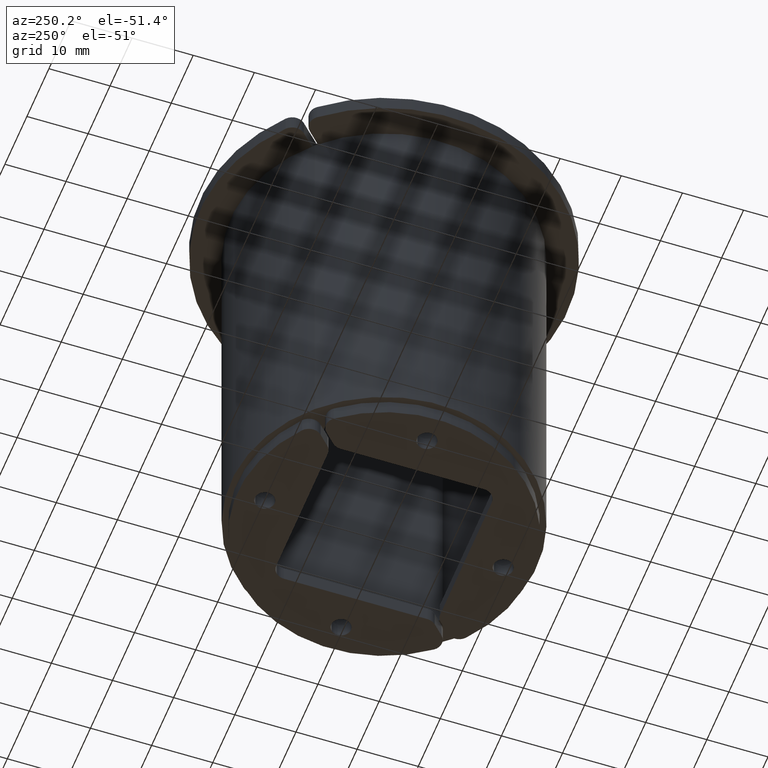
[diagram: clean part render]
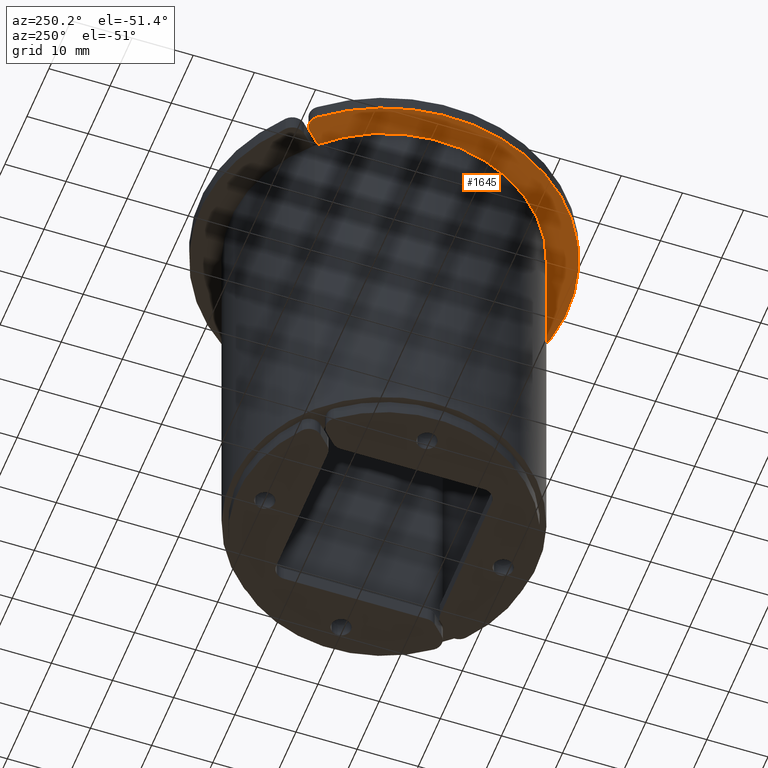
[diagram: same view with one face highlighted and labeled with its STEP entity id]
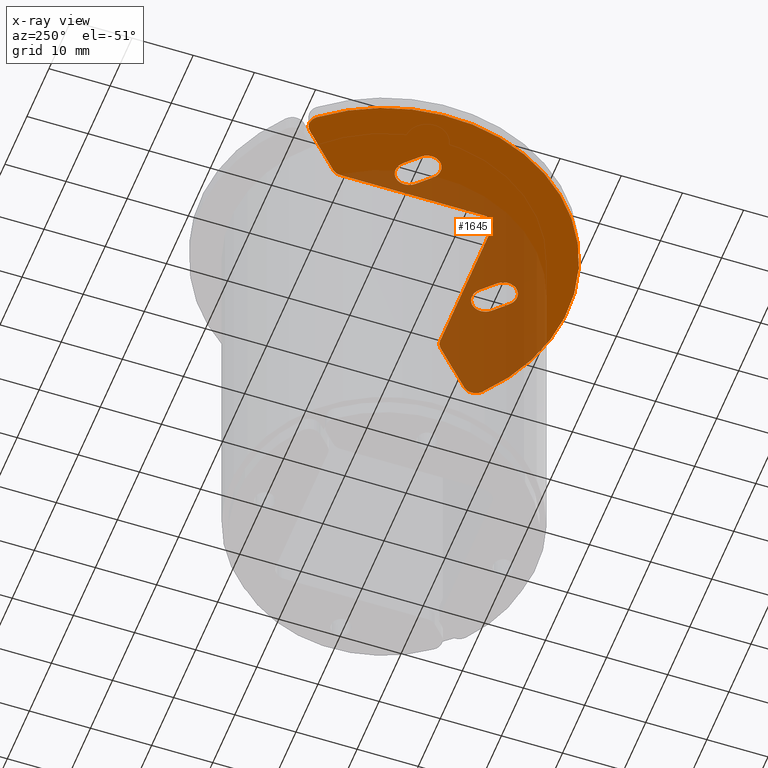
[diagram: x-ray of the same camera — body ghosted, the highlighted face saturated]
A machine part, auxiliary view. The second image highlights one B-rep face of the part: STEP entity #1645.
The next image is the same camera in x-ray: the body ghosted, the highlighted face saturated — about 43% of this face is hidden behind the body in this view.
In plain terms, the highlighted planar face has unit normal (0, 0, 1).
Its self-contained STEP definition (entity closure, byte-faithful):
#1053=CARTESIAN_POINT('',(21.090990257669752,-1.590990257669733,-2.5));
#1054=VERTEX_POINT('',#1053);
#1061=CARTESIAN_POINT('',(18.969669914110124,-3.712310601229367,-2.5));
#1062=VERTEX_POINT('',#1061);
#1063=CARTESIAN_POINT('',(18.969669914110124,-3.712310601229367,-2.5));
#1064=DIRECTION('',(0.707106781186547,0.707106781186548,0.0));
#1065=VECTOR('',#1064,2.999999999999986);
#1066=LINE('',#1063,#1065);
#1067=EDGE_CURVE('',#1062,#1054,#1066,.T.);
#1092=CARTESIAN_POINT('',(17.909009742330294,1.590990257669733,-2.5));
#1093=VERTEX_POINT('',#1092);
#1100=CARTESIAN_POINT('',(19.500000000000025,0.0,-2.5));
#1101=DIRECTION('',(0.0,0.0,1.0));
#1102=DIRECTION('',(0.707106781186547,-0.707106781186549,0.0));
#1103=AXIS2_PLACEMENT_3D('',#1100,#1101,#1102);
#1104=CIRCLE('',#1103,2.25);
#1105=EDGE_CURVE('',#1054,#1093,#1104,.T.);
#1124=CARTESIAN_POINT('',(15.787689398770659,-0.530330085889901,-2.5));
#1125=VERTEX_POINT('',#1124);
#1132=CARTESIAN_POINT('',(17.909009742330294,1.590990257669734,-2.5));
#1133=DIRECTION('',(-0.707106781186548,-0.707106781186547,0.0));
#1134=VECTOR('',#1133,2.999999999999989);
#1135=LINE('',#1132,#1134);
#1136=EDGE_CURVE('',#1093,#1125,#1135,.T.);
#1155=CARTESIAN_POINT('',(17.378679656440394,-2.121320343559634,-2.5));
#1156=DIRECTION('',(0.0,0.0,1.0));
#1157=DIRECTION('',(-0.707106781186548,0.707106781186548,0.0));
#1158=AXIS2_PLACEMENT_3D('',#1155,#1156,#1157);
#1159=CIRCLE('',#1158,2.25);
#1160=EDGE_CURVE('',#1125,#1062,#1159,.T.);
#1181=CARTESIAN_POINT('',(1.590990257669729,17.909009742330294,-2.5));
#1182=VERTEX_POINT('',#1181);
#1189=CARTESIAN_POINT('',(-0.530330085889901,15.787689398770661,-2.5));
#1190=VERTEX_POINT('',#1189);
#1191=CARTESIAN_POINT('',(-0.5303300858899,15.787689398770659,-2.5));
#1192=DIRECTION('',(0.707106781186547,0.707106781186548,0.0));
#1193=VECTOR('',#1192,2.999999999999985);
#1194=LINE('',#1191,#1193);
#1195=EDGE_CURVE('',#1190,#1182,#1194,.T.);
#1220=CARTESIAN_POINT('',(-1.590990257669729,21.090990257669752,-2.5));
#1221=VERTEX_POINT('',#1220);
#1228=CARTESIAN_POINT('',(0.0,19.500000000000025,-2.5));
#1229=DIRECTION('',(0.0,0.0,1.0));
#1230=DIRECTION('',(0.707106781186548,-0.707106781186548,0.0));
#1231=AXIS2_PLACEMENT_3D('',#1228,#1229,#1230);
#1232=CIRCLE('',#1231,2.25);
#1233=EDGE_CURVE('',#1182,#1221,#1232,.T.);
#1252=CARTESIAN_POINT('',(-3.712310601229372,18.969669914110124,-2.5));
#1253=VERTEX_POINT('',#1252);
#1260=CARTESIAN_POINT('',(-1.590990257669729,21.090990257669755,-2.5));
#1261=DIRECTION('',(-0.70710678118655,-0.707106781186546,0.0));
#1262=VECTOR('',#1261,2.999999999999993);
#1263=LINE('',#1260,#1262);
#1264=EDGE_CURVE('',#1221,#1253,#1263,.T.);
#1283=CARTESIAN_POINT('',(-2.121320343559634,17.378679656440394,-2.5));
#1284=DIRECTION('',(0.0,0.0,1.0));
#1285=DIRECTION('',(-0.70710678118655,0.707106781186546,0.0));
#1286=AXIS2_PLACEMENT_3D('',#1283,#1284,#1285);
#1287=CIRCLE('',#1286,2.249999999999999);
#1288=EDGE_CURVE('',#1253,#1190,#1287,.T.);
#1310=CARTESIAN_POINT('',(-19.234443042801722,23.022515084873273,-2.5));
#1311=VERTEX_POINT('',#1310);
#1318=CARTESIAN_POINT('',(-19.366360402321764,20.073467183508331,-2.5));
#1319=VERTEX_POINT('',#1318);
#1320=CARTESIAN_POINT('',(-17.952146839948682,21.487680745881409,-2.5));
#1321=DIRECTION('',(0.0,0.0,-1.0));
#1322=DIRECTION('',(-0.641148101426526,0.76741716949594,0.0));
#1323=AXIS2_PLACEMENT_3D('',#1320,#1321,#1322);
#1324=CIRCLE('',#1323,2.0);
#1325=EDGE_CURVE('',#1319,#1311,#1324,.T.);
#1350=CARTESIAN_POINT('',(-13.37867965644033,14.085786437626918,-2.5));
#1351=VERTEX_POINT('',#1350);
#1352=CARTESIAN_POINT('',(-13.378679656440326,14.085786437626918,-2.5));
#1353=DIRECTION('',(-0.707106781186549,0.707106781186546,0.0));
#1354=VECTOR('',#1353,8.467859317985763);
#1355=LINE('',#1352,#1354);
#1356=EDGE_CURVE('',#1351,#1319,#1355,.T.);
#1382=CARTESIAN_POINT('',(-11.964466094067237,13.500000000000014,-2.5));
#1383=VERTEX_POINT('',#1382);
#1384=CARTESIAN_POINT('',(-11.964466094067234,15.500000000000014,-2.5));
#1385=DIRECTION('',(0.0,0.0,-1.0));
#1386=DIRECTION('',(-0.707106781186548,-0.707106781186548,0.0));
#1387=AXIS2_PLACEMENT_3D('',#1384,#1385,#1386);
#1388=CIRCLE('',#1387,2.0);
#1389=EDGE_CURVE('',#1383,#1351,#1388,.T.);
#1414=CARTESIAN_POINT('',(11.500000000000005,13.500000000000014,-2.5));
#1415=VERTEX_POINT('',#1414);
#1416=CARTESIAN_POINT('',(11.500000000000007,13.500000000000014,-2.5));
#1417=DIRECTION('',(-1.0,0.0,0.0));
#1418=VECTOR('',#1417,23.464466094067241);
#1419=LINE('',#1416,#1418);
#1420=EDGE_CURVE('',#1415,#1383,#1419,.T.);
#1446=CARTESIAN_POINT('',(13.500000000000014,11.499999999999989,-2.5));
#1447=VERTEX_POINT('',#1446);
#1448=CARTESIAN_POINT('',(11.500000000000005,11.500000000000005,-2.5));
#1449=DIRECTION('',(0.0,0.0,1.0));
#1450=DIRECTION('',(-1.0,0.0,0.0));
#1451=AXIS2_PLACEMENT_3D('',#1448,#1449,#1450);
#1452=CIRCLE('',#1451,2.0);
#1453=EDGE_CURVE('',#1447,#1415,#1452,.T.);
#1478=CARTESIAN_POINT('',(13.499999999999998,-11.96446609406725,-2.5));
#1479=VERTEX_POINT('',#1478);
#1480=CARTESIAN_POINT('',(13.499999999999998,-11.964466094067248,-2.5));
#1481=DIRECTION('',(0.0,1.0,0.0));
#1482=VECTOR('',#1481,23.464466094067234);
#1483=LINE('',#1480,#1482);
#1484=EDGE_CURVE('',#1479,#1447,#1483,.T.);
#1510=CARTESIAN_POINT('',(14.085786437626908,-13.378679656440342,-2.5));
#1511=VERTEX_POINT('',#1510);
#1512=CARTESIAN_POINT('',(15.500000000000016,-11.964466094067234,-2.5));
#1513=DIRECTION('',(0.0,0.0,-1.0));
#1514=DIRECTION('',(-1.0,0.0,0.0));
#1515=AXIS2_PLACEMENT_3D('',#1512,#1513,#1514);
#1516=CIRCLE('',#1515,1.999999999999996);
#1517=EDGE_CURVE('',#1511,#1479,#1516,.T.);
#1542=CARTESIAN_POINT('',(20.07346718350831,-19.366360402321739,-2.5));
#1543=VERTEX_POINT('',#1542);
#1544=CARTESIAN_POINT('',(20.07346718350831,-19.366360402321739,-2.5));
#1545=DIRECTION('',(-0.707106781186548,0.707106781186547,0.0));
#1546=VECTOR('',#1545,8.467859317985726);
#1547=LINE('',#1544,#1546);
#1548=EDGE_CURVE('',#1543,#1511,#1547,.T.);
#1574=CARTESIAN_POINT('',(23.022515084872865,-19.234443042802209,-2.5));
#1575=VERTEX_POINT('',#1574);
#1576=CARTESIAN_POINT('',(21.487680745881409,-17.952146839948654,-2.5));
#1577=DIRECTION('',(0.0,0.0,-1.0));
#1578=DIRECTION('',(-0.707106781186552,-0.707106781186543,0.0));
#1579=AXIS2_PLACEMENT_3D('',#1576,#1577,#1578);
#1580=CIRCLE('',#1579,2.0);
#1581=EDGE_CURVE('',#1575,#1543,#1580,.T.);
#1605=CARTESIAN_POINT('',(0.0,0.0,-2.5));
#1606=DIRECTION('',(0.0,0.0,-1.0));
#1607=DIRECTION('',(0.767417169495762,-0.64114810142674,0.0));
#1608=AXIS2_PLACEMENT_3D('',#1605,#1606,#1607);
#1609=CIRCLE('',#1608,29.999999999999996);
#1610=EDGE_CURVE('',#1311,#1575,#1609,.T.);
#1616=CARTESIAN_POINT('',(9.299162312304922,9.299162312304928,-2.5));
#1617=DIRECTION('',(0.0,0.0,1.0));
#1618=DIRECTION('',(1.0,0.0,0.0));
#1619=AXIS2_PLACEMENT_3D('',#1616,#1617,#1618);
#1620=PLANE('',#1619);
#1621=ORIENTED_EDGE('',*,*,#1610,.T.);
#1622=ORIENTED_EDGE('',*,*,#1581,.T.);
#1623=ORIENTED_EDGE('',*,*,#1548,.T.);
#1624=ORIENTED_EDGE('',*,*,#1517,.T.);
#1625=ORIENTED_EDGE('',*,*,#1484,.T.);
#1626=ORIENTED_EDGE('',*,*,#1453,.T.);
#1627=ORIENTED_EDGE('',*,*,#1420,.T.);
#1628=ORIENTED_EDGE('',*,*,#1389,.T.);
#1629=ORIENTED_EDGE('',*,*,#1356,.T.);
#1630=ORIENTED_EDGE('',*,*,#1325,.T.);
#1631=EDGE_LOOP('',(#1621,#1622,#1623,#1624,#1625,#1626,#1627,#1628,#1629,#1630));
#1632=FACE_OUTER_BOUND('',#1631,.T.);
#1633=ORIENTED_EDGE('',*,*,#1067,.T.);
#1634=ORIENTED_EDGE('',*,*,#1105,.T.);
#1635=ORIENTED_EDGE('',*,*,#1136,.T.);
#1636=ORIENTED_EDGE('',*,*,#1160,.T.);
#1637=EDGE_LOOP('',(#1633,#1634,#1635,#1636));
#1638=FACE_BOUND('',#1637,.T.);
#1639=ORIENTED_EDGE('',*,*,#1195,.T.);
#1640=ORIENTED_EDGE('',*,*,#1233,.T.);
#1641=ORIENTED_EDGE('',*,*,#1264,.T.);
#1642=ORIENTED_EDGE('',*,*,#1288,.T.);
#1643=EDGE_LOOP('',(#1639,#1640,#1641,#1642));
#1644=FACE_BOUND('',#1643,.T.);
#1645=ADVANCED_FACE('',(#1632,#1638,#1644),#1620,.F.);